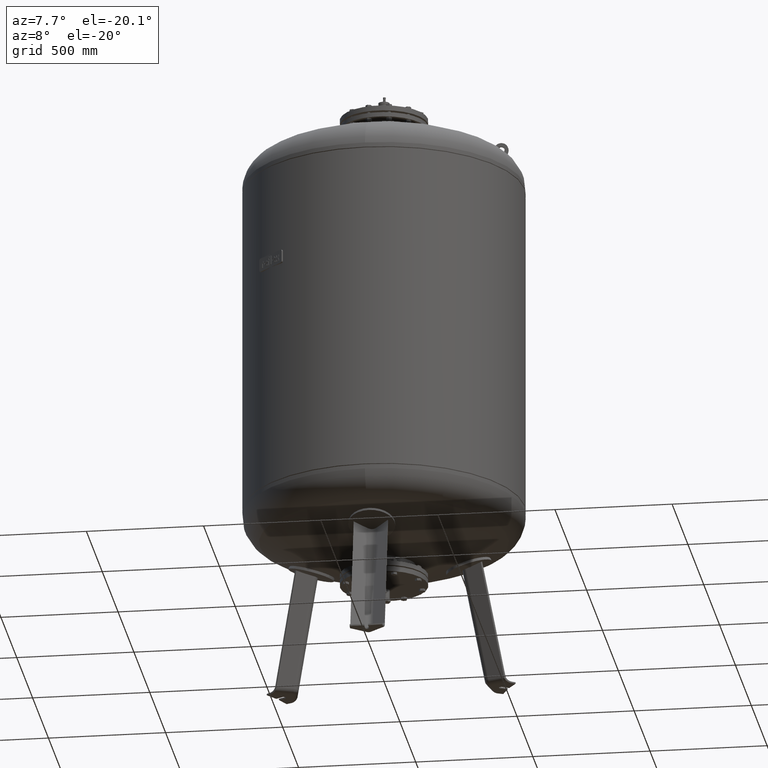
[diagram: clean part render]
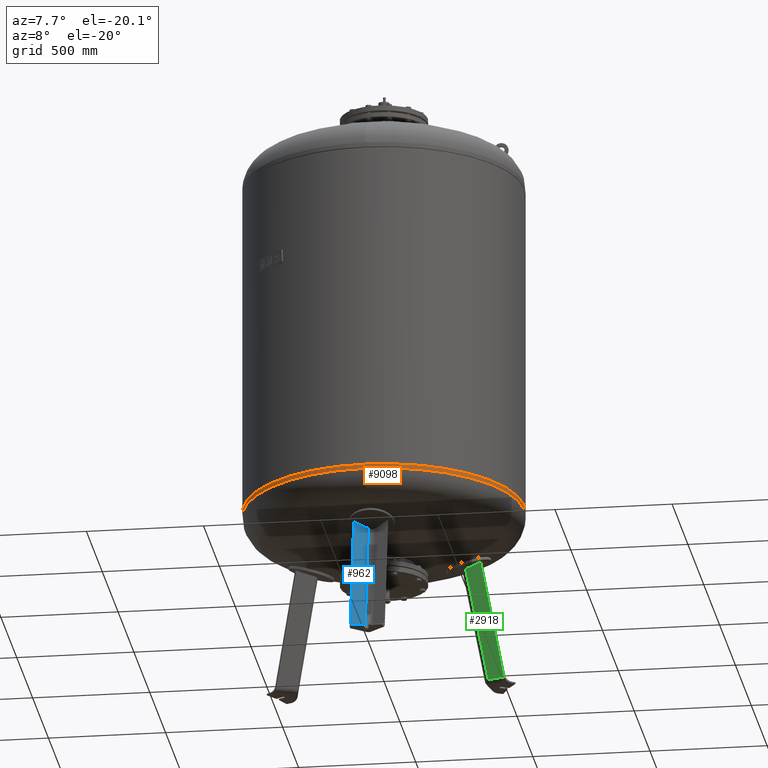
[diagram: same view with three faces highlighted in distinct colors, each labeled with its STEP entity id]
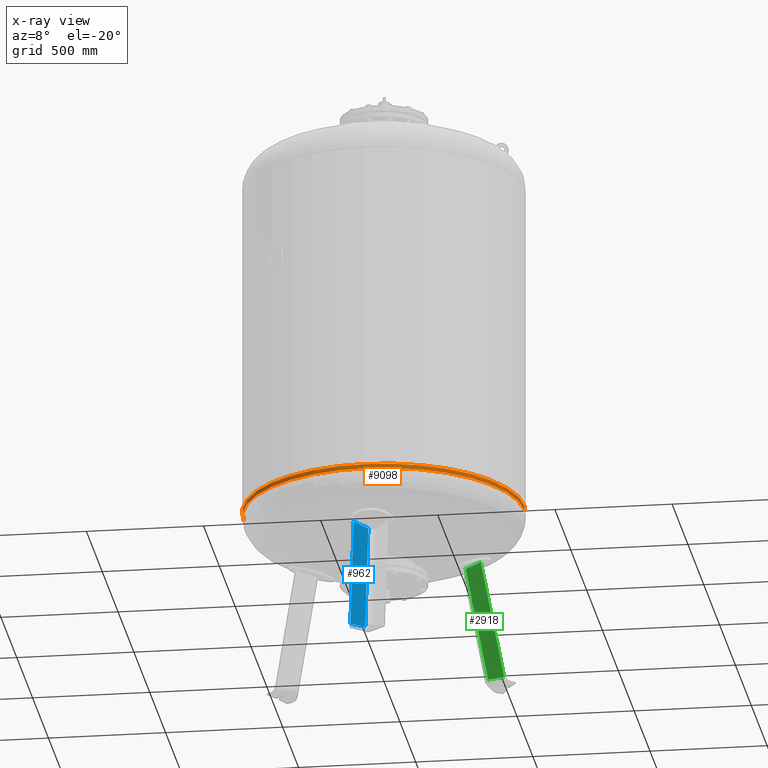
[diagram: x-ray of the same camera — body ghosted, the three highlighted faces saturated]
A machine part, auxiliary view with three faces highlighted in distinct colors.
The next image is the same camera in x-ray (body ghosted, the three faces saturated) — at least one of them is partly hidden behind the body in this view.
Their STEP definitions:

[orange] entity #9098 — the highlighted cylindrical surface (partial cylindrical patch) has radius 600 mm, axis along (-0, -0, 1).
#8946=CARTESIAN_POINT('',(-600.000000000000110,-4.684274E-014,715.0));
#8947=VERTEX_POINT('',#8946);
#8948=CARTESIAN_POINT('',(-600.0,-4.336858E-014,696.087542566272190));
#8949=VERTEX_POINT('',#8948);
#8950=CARTESIAN_POINT('',(-600.000000000000110,-4.684274E-014,715.0));
#8951=DIRECTION('',(0.0,0.0,-1.0));
#8952=VECTOR('',#8951,18.912457433727809);
#8953=LINE('',#8950,#8952);
#8954=EDGE_CURVE('',#8947,#8949,#8953,.T.);
#8956=CARTESIAN_POINT('',(599.999999999999890,2.663364E-014,715.000000000000110));
#8957=VERTEX_POINT('',#8956);
#8965=CARTESIAN_POINT('',(599.999999999999890,3.010780E-014,696.087542566272300));
#8966=VERTEX_POINT('',#8965);
#8967=CARTESIAN_POINT('',(599.999999999999890,2.663364E-014,715.000000000000110));
#8968=DIRECTION('',(0.0,0.0,-1.0));
#8969=VECTOR('',#8968,18.912457433727809);
#8970=LINE('',#8967,#8969);
#8971=EDGE_CURVE('',#8957,#8966,#8970,.T.);
#8997=CARTESIAN_POINT('',(-7.105427E-014,-600.0,696.087542566272190));
#8998=VERTEX_POINT('',#8997);
#9008=CARTESIAN_POINT('',(-3.551733E-014,-4.336858E-014,696.087542566272300));
#9009=DIRECTION('',(0.0,0.0,1.0));
#9010=DIRECTION('',(-1.0,0.0,0.0));
#9011=AXIS2_PLACEMENT_3D('',#9008,#9009,#9010);
#9012=CIRCLE('',#9011,600.0);
#9013=EDGE_CURVE('',#8949,#8998,#9012,.T.);
#9070=CARTESIAN_POINT('',(-3.551733E-014,-4.336858E-014,696.087542566272300));
#9071=DIRECTION('',(0.0,0.0,1.0));
#9072=DIRECTION('',(-1.0,0.0,0.0));
#9073=AXIS2_PLACEMENT_3D('',#9070,#9071,#9072);
#9074=CIRCLE('',#9073,600.0);
#9075=EDGE_CURVE('',#8998,#8966,#9074,.T.);
#9080=CARTESIAN_POINT('',(-3.693994E-014,-4.510566E-014,705.543771283136150));
#9081=DIRECTION('',(-1.504413E-016,-1.836970E-016,1.0));
#9082=DIRECTION('',(-1.0,0.0,0.0));
#9083=AXIS2_PLACEMENT_3D('',#9080,#9081,#9082);
#9084=CYLINDRICAL_SURFACE('',#9083,599.999999999999890);
#9085=ORIENTED_EDGE('',*,*,#8954,.T.);
#9086=ORIENTED_EDGE('',*,*,#9013,.T.);
#9087=ORIENTED_EDGE('',*,*,#9075,.T.);
#9088=ORIENTED_EDGE('',*,*,#8971,.F.);
#9089=CARTESIAN_POINT('',(-3.836254E-014,-4.684274E-014,715.0));
#9090=DIRECTION('',(0.0,0.0,1.0));
#9091=DIRECTION('',(-1.0,0.0,0.0));
#9092=AXIS2_PLACEMENT_3D('',#9089,#9090,#9091);
#9093=CIRCLE('',#9092,600.0);
#9094=EDGE_CURVE('',#8947,#8957,#9093,.T.);
#9095=ORIENTED_EDGE('',*,*,#9094,.F.);
#9096=EDGE_LOOP('',(#9085,#9086,#9087,#9088,#9095));
#9097=FACE_OUTER_BOUND('',#9096,.T.);
#9098=ADVANCED_FACE('',(#9097),#9084,.T.);

[blue] entity #962 — the highlighted planar face has unit normal (0.6455, -0.7471, 0.1588).
#213=CARTESIAN_POINT('',(-16.136450826554505,-476.124712592942840,27.029948423057292));
#214=VERTEX_POINT('',#213);
#546=CARTESIAN_POINT('',(-72.837866169855019,-525.111649658243320,27.029948423057292));
#547=VERTEX_POINT('',#546);
#548=CARTESIAN_POINT('',(-16.136450826554505,-476.124712592942840,27.029948423057292));
#549=DIRECTION('',(-0.756707249513242,-0.653753882232530,0.0));
#550=VECTOR('',#549,74.931772333057651);
#551=LINE('',#548,#550);
#552=EDGE_CURVE('',#214,#547,#551,.T.);
#833=CARTESIAN_POINT('',(-72.837866169854905,-418.875260683767750,526.832862714638170));
#834=VERTEX_POINT('',#833);
#842=CARTESIAN_POINT('',(-16.136450826554402,-373.822192772864470,508.325463444113210));
#843=VERTEX_POINT('',#842);
#844=CARTESIAN_POINT('',(45.036832094930027,-115.262731376360140,1476.110567297756700));
#845=DIRECTION('',(-0.645458033062181,0.747104967402683,-0.158802063077709));
#846=DIRECTION('',(5.092368E-017,0.207911690817760,0.978147600733806));
#847=AXIS2_PLACEMENT_3D('',#844,#845,#846);
#848=CIRCLE('',#847,1003.595123972834800);
#849=EDGE_CURVE('',#843,#834,#848,.T.);
#941=CARTESIAN_POINT('',(1.530690E-014,-472.504855353818410,-21.527282742766886));
#942=DIRECTION('',(0.645458033062181,-0.747104967402683,0.158802063077708));
#943=DIRECTION('',(2.013321E-016,0.207911690817760,0.978147600733806));
#944=AXIS2_PLACEMENT_3D('',#941,#942,#943);
#945=PLANE('',#944);
#946=ORIENTED_EDGE('',*,*,#849,.T.);
#947=CARTESIAN_POINT('',(-72.837866169855019,-525.111649658243320,27.029948423057292));
#948=DIRECTION('',(2.224927E-016,0.207911690817760,0.978147600733805));
#949=VECTOR('',#948,510.968808712130110);
#950=LINE('',#947,#949);
#951=EDGE_CURVE('',#547,#834,#950,.T.);
#952=ORIENTED_EDGE('',*,*,#951,.F.);
#953=ORIENTED_EDGE('',*,*,#552,.F.);
#954=CARTESIAN_POINT('',(-16.136450826554402,-373.822192772864470,508.325463444113210));
#955=DIRECTION('',(-2.093875E-016,-0.207911690817760,-0.978147600733806));
#956=VECTOR('',#955,492.047943132496980);
#957=LINE('',#954,#956);
#958=EDGE_CURVE('',#843,#214,#957,.T.);
#959=ORIENTED_EDGE('',*,*,#958,.F.);
#960=EDGE_LOOP('',(#946,#952,#953,#959));
#961=FACE_OUTER_BOUND('',#960,.T.);
#962=ADVANCED_FACE('',(#961),#945,.T.);

[green] entity #2918 — the highlighted planar face has unit normal (-0.3243, -0.9325, -0.1588).
#2243=CARTESIAN_POINT('',(486.243118968847450,195.862106057392200,21.029948423057292));
#2244=VERTEX_POINT('',#2243);
#2252=CARTESIAN_POINT('',(414.642004680756830,220.760904562808090,21.029948423057292));
#2253=VERTEX_POINT('',#2252);
#2254=CARTESIAN_POINT('',(486.243118968847450,195.862106057392200,21.029948423057292));
#2255=DIRECTION('',(-0.944521094592691,0.328450760190054,0.0));
#2256=VECTOR('',#2255,75.806792138366575);
#2257=LINE('',#2254,#2256);
#2258=EDGE_CURVE('',#2244,#2253,#2257,.T.);
#2713=CARTESIAN_POINT('',(325.378596878368800,169.224652039316080,505.947959126467590));
#2714=VERTEX_POINT('',#2713);
#2744=CARTESIAN_POINT('',(393.596570269069160,142.372596226085530,524.326665410275270));
#2745=VERTEX_POINT('',#2744);
#2746=CARTESIAN_POINT('',(75.381030288212628,91.110193958312436,1475.169845689218200));
#2747=DIRECTION('',(0.324282864533177,0.932535537409926,0.158802063077708));
#2748=DIRECTION('',(0.180056805991956,0.103955845408880,-0.978147600733805));
#2749=AXIS2_PLACEMENT_3D('',#2746,#2747,#2748);
#2750=CIRCLE('',#2749,1003.987906926445600);
#2751=EDGE_CURVE('',#2745,#2714,#2750,.T.);
#2889=CARTESIAN_POINT('',(486.243118968847450,195.862106057392200,21.029948423057292));
#2890=DIRECTION('',(-0.180056805991956,-0.103955845408880,0.978147600733806));
#2891=VECTOR('',#2890,514.540665038328710);
#2892=LINE('',#2889,#2891);
#2893=EDGE_CURVE('',#2244,#2745,#2892,.T.);
#2902=CARTESIAN_POINT('',(494.077027787752740,200.385015422794170,-21.527282742766886));
#2903=DIRECTION('',(-0.324282864533177,-0.932535537409926,-0.158802063077709));
#2904=DIRECTION('',(0.180056805991956,0.103955845408880,-0.978147600733806));
#2905=AXIS2_PLACEMENT_3D('',#2902,#2903,#2904);
#2906=PLANE('',#2905);
#2907=ORIENTED_EDGE('',*,*,#2751,.T.);
#2908=CARTESIAN_POINT('',(414.642004680756830,220.760904562808090,21.029948423057292));
#2909=DIRECTION('',(-0.180056805991956,-0.103955845408880,0.978147600733806));
#2910=VECTOR('',#2909,495.751367523291150);
#2911=LINE('',#2908,#2910);
#2912=EDGE_CURVE('',#2253,#2714,#2911,.T.);
#2913=ORIENTED_EDGE('',*,*,#2912,.F.);
#2914=ORIENTED_EDGE('',*,*,#2258,.F.);
#2915=ORIENTED_EDGE('',*,*,#2893,.T.);
#2916=EDGE_LOOP('',(#2907,#2913,#2914,#2915));
#2917=FACE_OUTER_BOUND('',#2916,.T.);
#2918=ADVANCED_FACE('',(#2917),#2906,.T.);